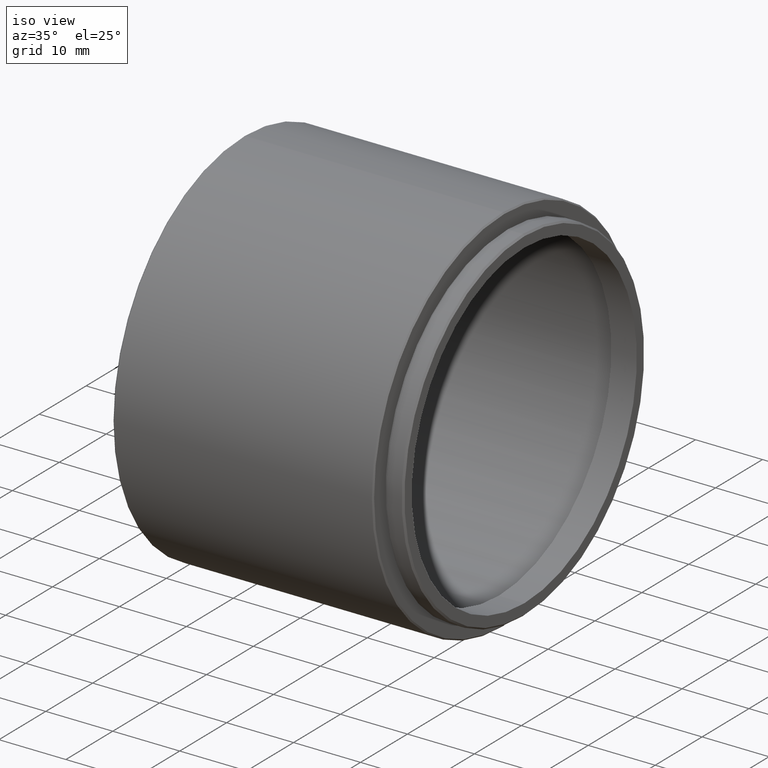
[diagram: clean part render]
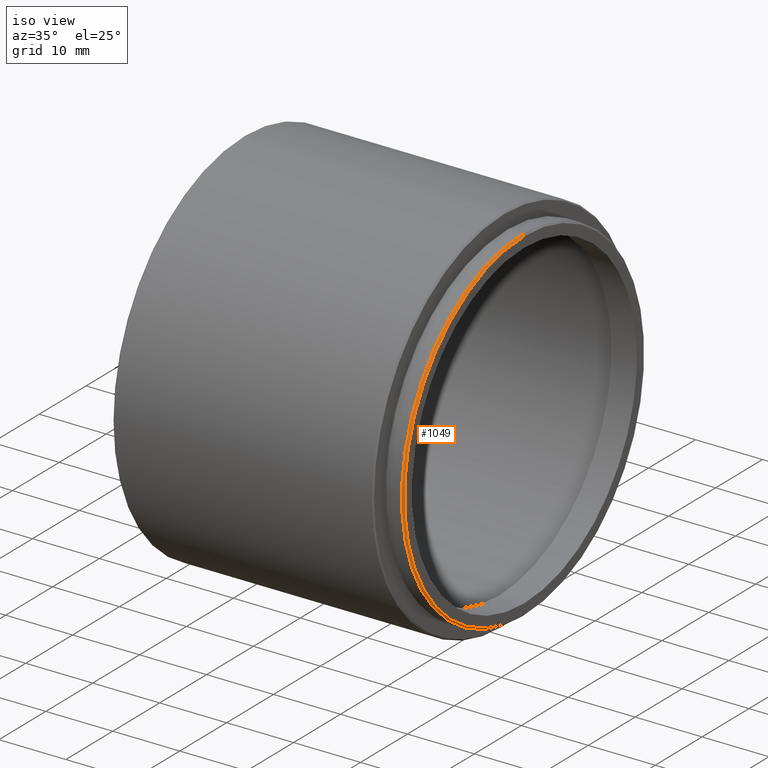
[diagram: same view with one face highlighted and labeled with its STEP entity id]
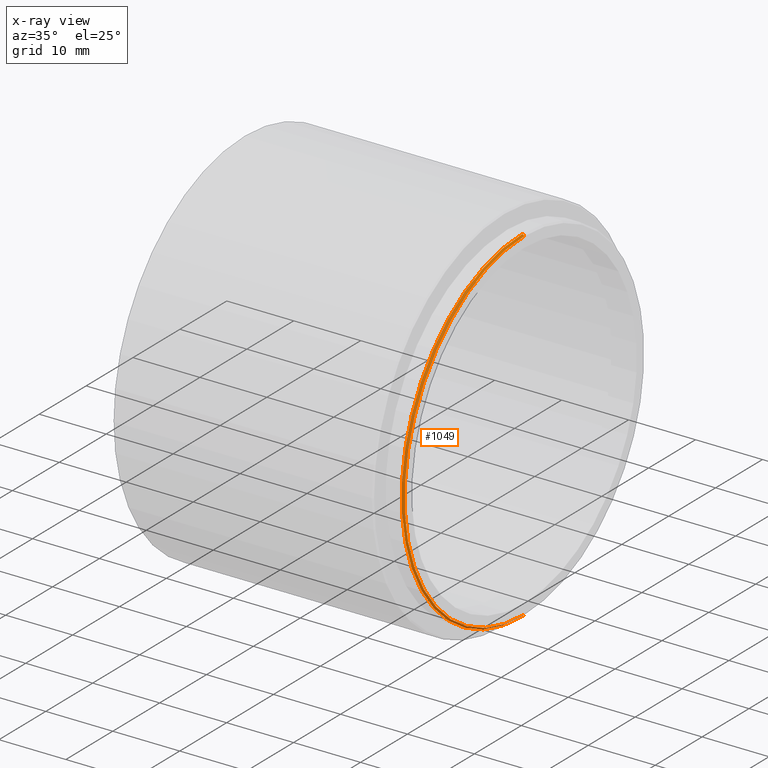
[diagram: x-ray of the same camera — body ghosted, the highlighted face saturated]
A machine part, iso view. The second image highlights one B-rep face of the part: STEP entity #1049.
The next image is the same camera in x-ray: the body ghosted, the highlighted face saturated — about 0% of this face is hidden behind the body in this view.
In plain terms, the highlighted conical surface has half-angle 45 deg.
Its self-contained STEP definition (entity closure, byte-faithful):
#2 = AXIS2_PLACEMENT_3D ( 'NONE', #219, #604, #1325 ) ;
#29 = VECTOR ( 'NONE', #282, 1000.000000000000000 ) ;
#33 = CARTESIAN_POINT ( 'NONE',  ( 6.525999999999982926, -20.10857142857141966, 0.000000000000000000 ) ) ;
#35 = CIRCLE ( 'NONE', #2, 25.80000000000000426 ) ;
#38 = DIRECTION ( 'NONE',  ( -1.000000000000000000, 0.000000000000000000, 0.000000000000000000 ) ) ;
#89 = AXIS2_PLACEMENT_3D ( 'NONE', #1039, #38, #1260 ) ;
#95 = EDGE_CURVE ( 'NONE', #834, #615, #35, .T. ) ;
#133 = ORIENTED_EDGE ( 'NONE', *, *, #1123, .F. ) ;
#134 = ORIENTED_EDGE ( 'NONE', *, *, #95, .F. ) ;
#219 = CARTESIAN_POINT ( 'NONE',  ( 6.276000000000003354, -20.10857142857141966, 0.000000000000000000 ) ) ;
#257 = FACE_OUTER_BOUND ( 'NONE', #429, .T. ) ;
#282 = DIRECTION ( 'NONE',  ( -0.7071067811865378028, 8.659560562355053653E-17, -0.7071067811865573427 ) ) ;
#353 = EDGE_CURVE ( 'NONE', #989, #834, #1282, .T. ) ;
#355 = CARTESIAN_POINT ( 'NONE',  ( 6.276000000000003354, -20.10857142857141611, -25.80000000000000426 ) ) ;
#412 = DIRECTION ( 'NONE',  ( 0.000000000000000000, 0.000000000000000000, -1.000000000000000000 ) ) ;
#429 = EDGE_LOOP ( 'NONE', ( #752, #133, #1087, #134 ) ) ;
#604 = DIRECTION ( 'NONE',  ( -1.000000000000000000, 0.000000000000000000, 0.000000000000000000 ) ) ;
#615 = VERTEX_POINT ( 'NONE', #1434 ) ;
#664 = EDGE_CURVE ( 'NONE', #1394, #615, #925, .T. ) ;
#711 = CARTESIAN_POINT ( 'NONE',  ( 6.525999999999982926, -20.10857142857141966, 25.55000000000001847 ) ) ;
#752 = ORIENTED_EDGE ( 'NONE', *, *, #353, .F. ) ;
#792 = DIRECTION ( 'NONE',  ( 1.000000000000000000, 0.000000000000000000, 0.000000000000000000 ) ) ;
#831 = DIRECTION ( 'NONE',  ( -0.7071067811865378028, 0.000000000000000000, 0.7071067811865573427 ) ) ;
#834 = VERTEX_POINT ( 'NONE', #355 ) ;
#860 = CIRCLE ( 'NONE', #1493, 25.55000000000001847 ) ;
#925 = LINE ( 'NONE', #711, #1054 ) ;
#989 = VERTEX_POINT ( 'NONE', #1505 ) ;
#1039 = CARTESIAN_POINT ( 'NONE',  ( 6.525999999999982926, -20.10857142857141966, 0.000000000000000000 ) ) ;
#1049 = ADVANCED_FACE ( 'NONE', ( #257 ), #1503, .T. ) ;
#1054 = VECTOR ( 'NONE', #831, 1000.000000000000000 ) ;
#1087 = ORIENTED_EDGE ( 'NONE', *, *, #664, .T. ) ;
#1123 = EDGE_CURVE ( 'NONE', #1394, #989, #860, .T. ) ;
#1142 = CARTESIAN_POINT ( 'NONE',  ( 6.525999999999982926, -20.10857142857141611, -25.55000000000001847 ) ) ;
#1201 = CARTESIAN_POINT ( 'NONE',  ( 6.525999999999982926, -20.10857142857141966, 25.55000000000001847 ) ) ;
#1260 = DIRECTION ( 'NONE',  ( 0.000000000000000000, 0.000000000000000000, 1.000000000000000000 ) ) ;
#1282 = LINE ( 'NONE', #1142, #29 ) ;
#1325 = DIRECTION ( 'NONE',  ( 0.000000000000000000, 0.000000000000000000, -1.000000000000000000 ) ) ;
#1394 = VERTEX_POINT ( 'NONE', #1201 ) ;
#1434 = CARTESIAN_POINT ( 'NONE',  ( 6.276000000000003354, -20.10857142857141966, 25.80000000000000426 ) ) ;
#1493 = AXIS2_PLACEMENT_3D ( 'NONE', #33, #792, #412 ) ;
#1503 = CONICAL_SURFACE ( 'NONE', #89, 25.55000000000001847, 0.7853981633974621568 ) ;
#1505 = CARTESIAN_POINT ( 'NONE',  ( 6.525999999999982926, -20.10857142857141611, -25.55000000000001847 ) ) ;